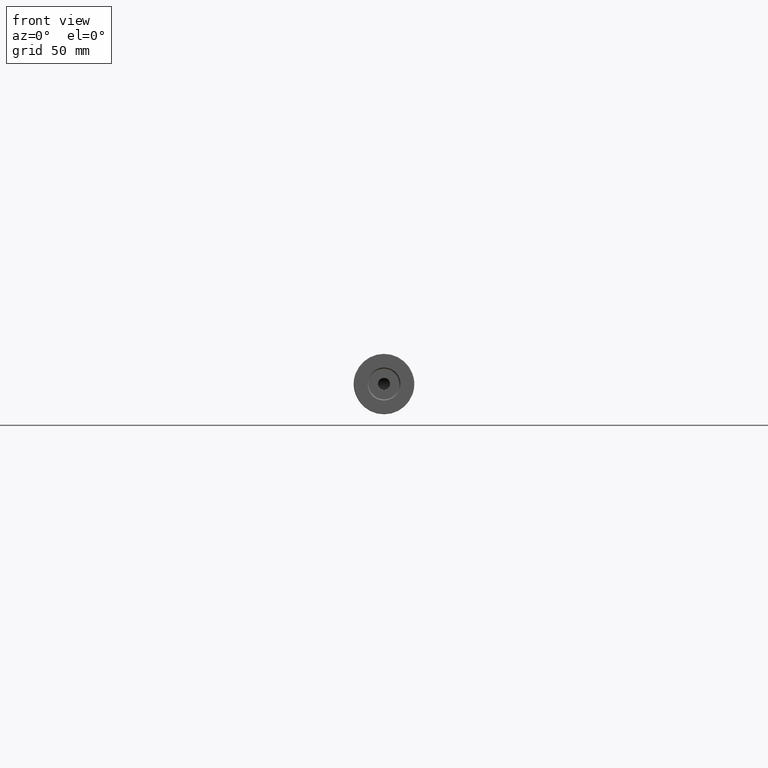
[diagram: clean part render]
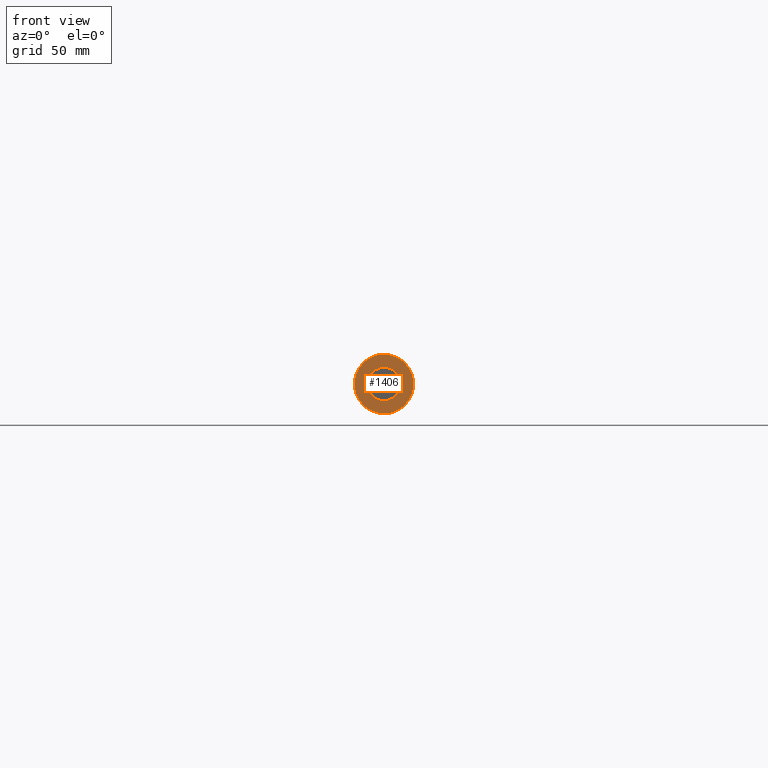
[diagram: same view with one face highlighted and labeled with its STEP entity id]
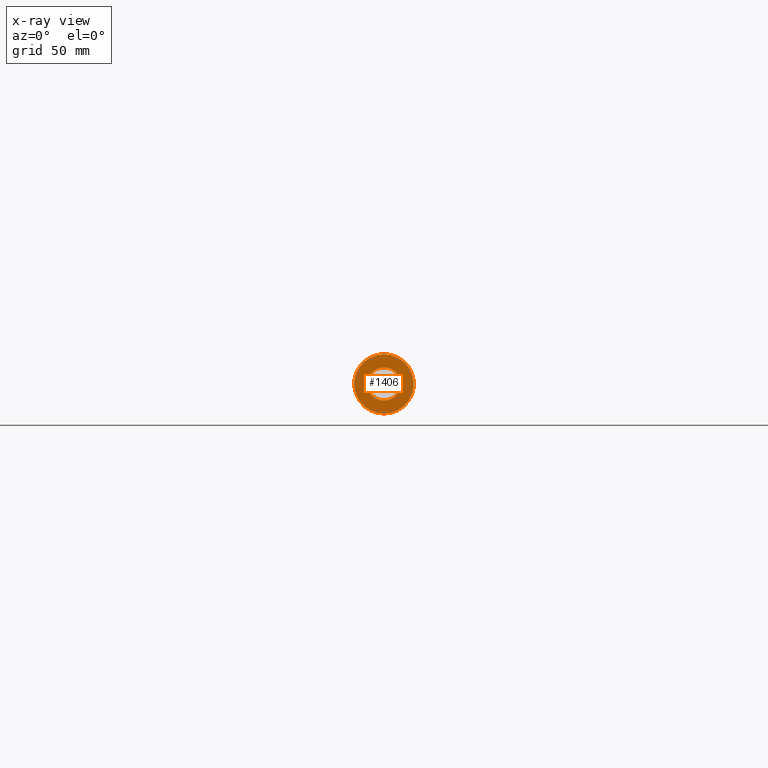
[diagram: x-ray of the same camera — body ghosted, the highlighted face saturated]
A machine part, front view. The second image highlights one B-rep face of the part: STEP entity #1406.
The next image is the same camera in x-ray: the body ghosted, the highlighted face saturated — about 0% of this face is hidden behind the body in this view.
In plain terms, the highlighted planar face has unit normal (0, 1, 0).
Its self-contained STEP definition (entity closure, byte-faithful):
#86 = AXIS2_PLACEMENT_3D ( 'NONE', #2959, #1643, #2137 ) ;
#162 = EDGE_LOOP ( 'NONE', ( #2577, #585 ) ) ;
#211 = DIRECTION ( 'NONE',  ( 0.0000000000000000000, 1.000000000000000000, 0.0000000000000000000 ) ) ;
#580 = CARTESIAN_POINT ( 'NONE',  ( -22.50520183104453409, -148.6017478152306239, 62.25000000000000000 ) ) ;
#585 = ORIENTED_EDGE ( 'NONE', *, *, #2925, .T. ) ;
#667 = AXIS2_PLACEMENT_3D ( 'NONE', #669, #1148, #1178 ) ;
#669 = CARTESIAN_POINT ( 'NONE',  ( -22.50520183104453409, -148.6017478152306239, 50.00000000000000000 ) ) ;
#696 = EDGE_CURVE ( 'NONE', #1215, #1101, #1005, .T. ) ;
#705 = ORIENTED_EDGE ( 'NONE', *, *, #3184, .T. ) ;
#809 = AXIS2_PLACEMENT_3D ( 'NONE', #3397, #3120, #2355 ) ;
#968 = EDGE_LOOP ( 'NONE', ( #1211, #705 ) ) ;
#1005 = CIRCLE ( 'NONE', #667, 12.24999999999999645 ) ;
#1094 = CIRCLE ( 'NONE', #3264, 6.849999999999995204 ) ;
#1101 = VERTEX_POINT ( 'NONE', #2710 ) ;
#1148 = DIRECTION ( 'NONE',  ( -0.0000000000000000000, -1.000000000000000000, -0.0000000000000000000 ) ) ;
#1178 = DIRECTION ( 'NONE',  ( 0.0000000000000000000, 0.0000000000000000000, 1.000000000000000000 ) ) ;
#1211 = ORIENTED_EDGE ( 'NONE', *, *, #696, .T. ) ;
#1215 = VERTEX_POINT ( 'NONE', #580 ) ;
#1280 = CARTESIAN_POINT ( 'NONE',  ( -22.50520183104453409, -148.6017478152306239, 50.00000000000000000 ) ) ;
#1366 = CARTESIAN_POINT ( 'NONE',  ( -22.50520183104453409, -148.6017478152306239, 43.15000000000000568 ) ) ;
#1406 = ADVANCED_FACE ( 'NONE', ( #2437, #2988 ), #2120, .F. ) ;
#1504 = VERTEX_POINT ( 'NONE', #1366 ) ;
#1643 = DIRECTION ( 'NONE',  ( 0.0000000000000000000, 1.000000000000000000, 0.0000000000000000000 ) ) ;
#1833 = DIRECTION ( 'NONE',  ( 0.0000000000000000000, 0.0000000000000000000, 1.000000000000000000 ) ) ;
#1980 = DIRECTION ( 'NONE',  ( 0.0000000000000000000, 0.0000000000000000000, 1.000000000000000000 ) ) ;
#2120 = PLANE ( 'NONE',  #86 ) ;
#2137 = DIRECTION ( 'NONE',  ( 0.0000000000000000000, -0.0000000000000000000, 1.000000000000000000 ) ) ;
#2200 = EDGE_CURVE ( 'NONE', #1504, #2275, #1094, .T. ) ;
#2275 = VERTEX_POINT ( 'NONE', #2821 ) ;
#2317 = CARTESIAN_POINT ( 'NONE',  ( -22.50520183104453409, -148.6017478152306239, 50.00000000000000000 ) ) ;
#2355 = DIRECTION ( 'NONE',  ( 0.0000000000000000000, 0.0000000000000000000, 1.000000000000000000 ) ) ;
#2437 = FACE_OUTER_BOUND ( 'NONE', #968, .T. ) ;
#2508 = DIRECTION ( 'NONE',  ( 0.0000000000000000000, 1.000000000000000000, 0.0000000000000000000 ) ) ;
#2577 = ORIENTED_EDGE ( 'NONE', *, *, #2200, .T. ) ;
#2650 = AXIS2_PLACEMENT_3D ( 'NONE', #2317, #2508, #1980 ) ;
#2710 = CARTESIAN_POINT ( 'NONE',  ( -22.50520183104453409, -148.6017478152306239, 37.75000000000000711 ) ) ;
#2821 = CARTESIAN_POINT ( 'NONE',  ( -22.50520183104453409, -148.6017478152306239, 56.84999999999999432 ) ) ;
#2925 = EDGE_CURVE ( 'NONE', #2275, #1504, #3089, .T. ) ;
#2959 = CARTESIAN_POINT ( 'NONE',  ( -22.50520183104453409, -148.6017478152306239, 50.00000000000000000 ) ) ;
#2988 = FACE_BOUND ( 'NONE', #162, .T. ) ;
#3089 = CIRCLE ( 'NONE', #2650, 6.849999999999995204 ) ;
#3120 = DIRECTION ( 'NONE',  ( -0.0000000000000000000, -1.000000000000000000, -0.0000000000000000000 ) ) ;
#3184 = EDGE_CURVE ( 'NONE', #1101, #1215, #3429, .T. ) ;
#3264 = AXIS2_PLACEMENT_3D ( 'NONE', #1280, #211, #1833 ) ;
#3397 = CARTESIAN_POINT ( 'NONE',  ( -22.50520183104453409, -148.6017478152306239, 50.00000000000000000 ) ) ;
#3429 = CIRCLE ( 'NONE', #809, 12.24999999999999645 ) ;